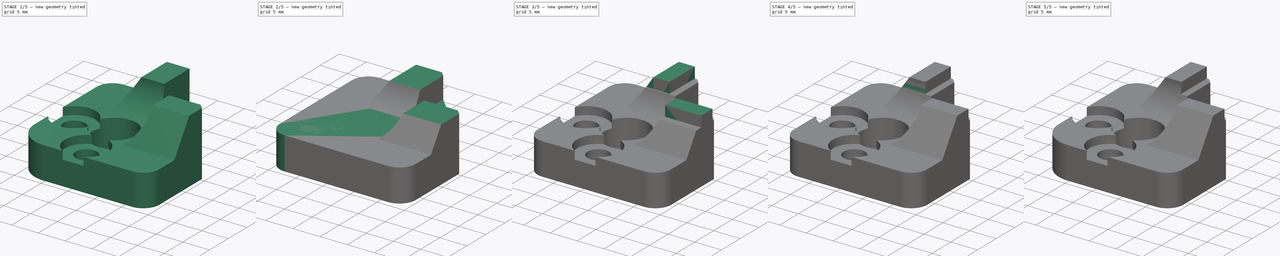
[diagram: build sequence overview — one tinted view per stage of 5, left to right]
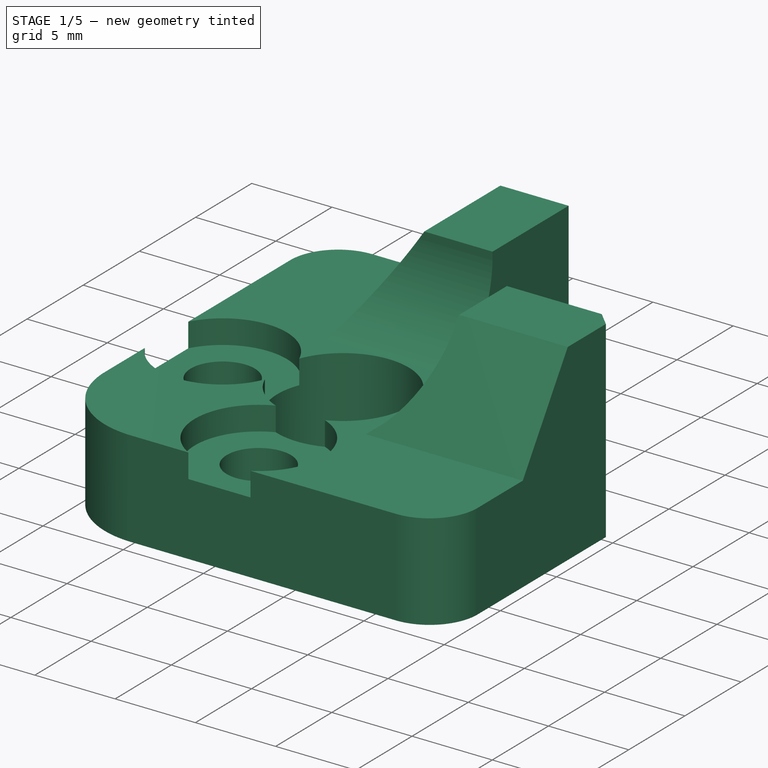
[diagram: stage 1 of 5 — iso view after this stage's code; geometry added in this stage tinted green]
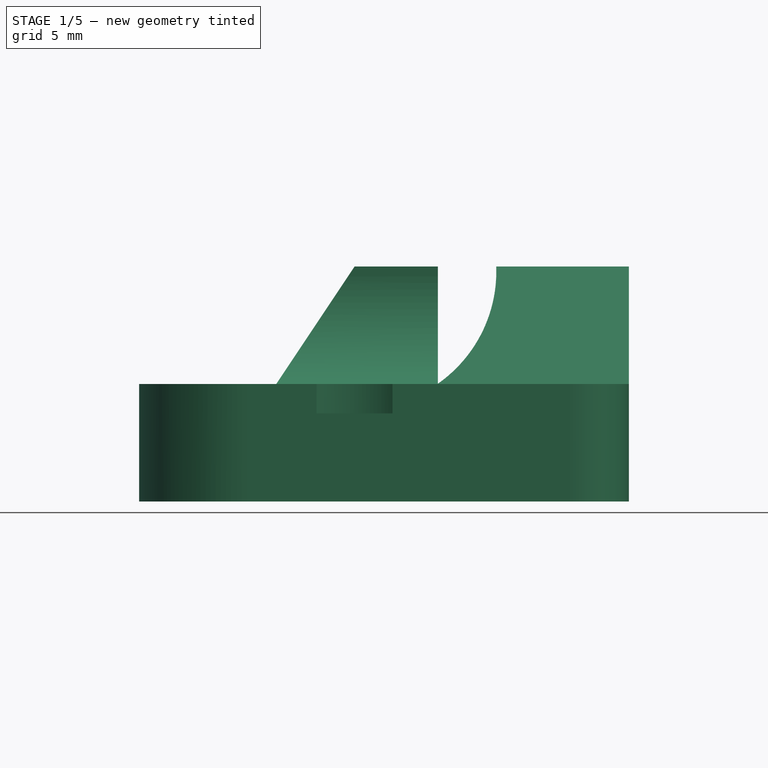
[diagram: stage 1 of 5 — front view after this stage's code; geometry added in this stage tinted green]
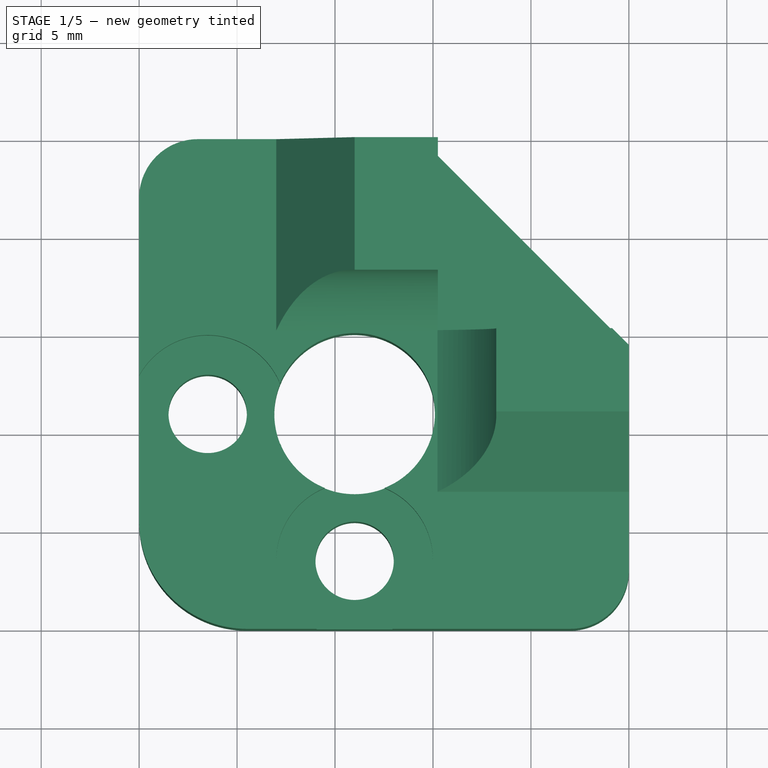
[diagram: stage 1 of 5 — top view after this stage's code; geometry added in this stage tinted green]
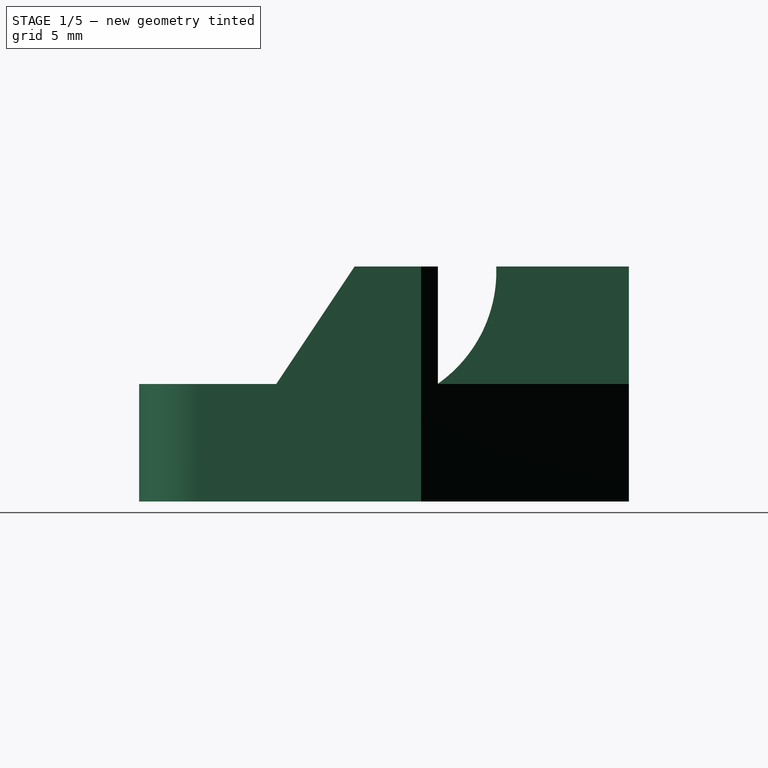
[diagram: stage 1 of 5 — right view after this stage's code; geometry added in this stage tinted green]
FCSTD DOCUMENT  (FreeCAD 0.17R11850 (Git))
Label: bed_corner_mini_2pb_v2
License: All rights reserved
LicenseURL: http://en.wikipedia.org/wiki/All_rights_reserved
objects: Sketcher::SketchObject×10, PartDesign::Pad×8, PartDesign::Pocket×8, PartDesign::Body×2, Part::Feature×2
note: 46 computed .brp shape members not serialized (recipe doc carries the construction recipe); baked Part::Feature solids carry a one-line shape summary decoded from their .brp

FEATURE [PartDesign::Body] Body
  Group = -> [Sketch,Pad,Sketch001,Pad001,Sketch002,Pad002,Sketch003,Pocket,Sketch004,Pocket001,Sketch005,Pad003,Sketch006,Pad004,Pocket002,Sketch007,Pad005,Pocket003,Sketch008,Pocket004]
  Origin = -> Origin
  Tip = -> Pocket004
FEATURE [Part::Feature] Pocket004001  label="Pocket005"
  shape: bbox 25 x 25 x 12 mm, 34 faces (baked)
FEATURE [PartDesign::Pad] Pad006
  BaseFeature = -> Pocket004001
  Length = 1.25
  Length2 = 100
  Profile = -> Pocket004001 [Face31]
  Type = 0
FEATURE [PartDesign::Pad] Pad007
  BaseFeature = -> Pad006
  Length = 1.25
  Length2 = 100
  Profile = -> Pad006 [Face15]
  Type = 0
FEATURE [PartDesign::Pocket] Pocket004002
  BaseFeature = -> Pad007
  Length = 5
  Profile = -> Pad007 [Face15]
  Type = 1
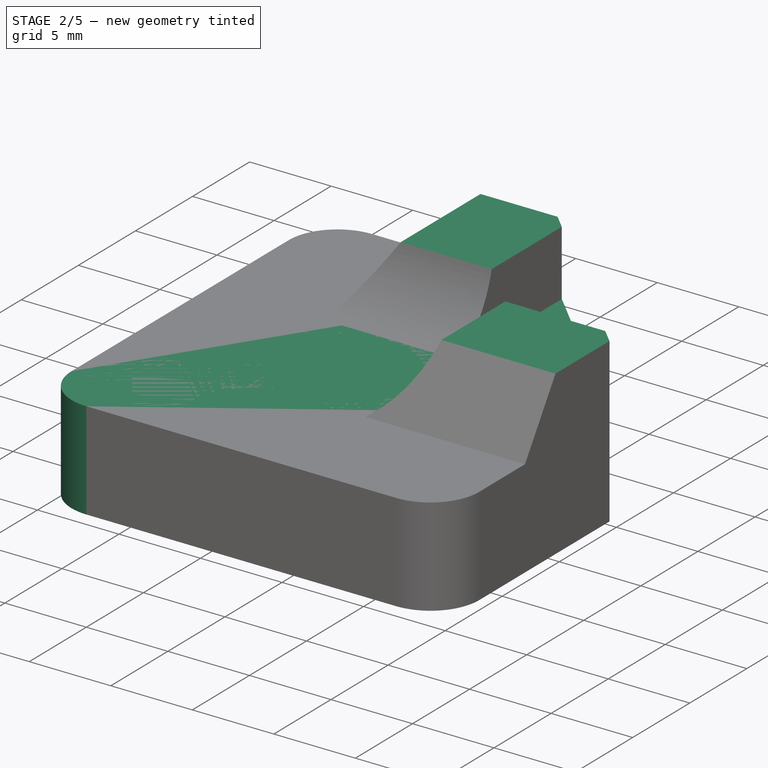
[diagram: stage 2 of 5 — iso view after this stage's code; geometry added in this stage tinted green]
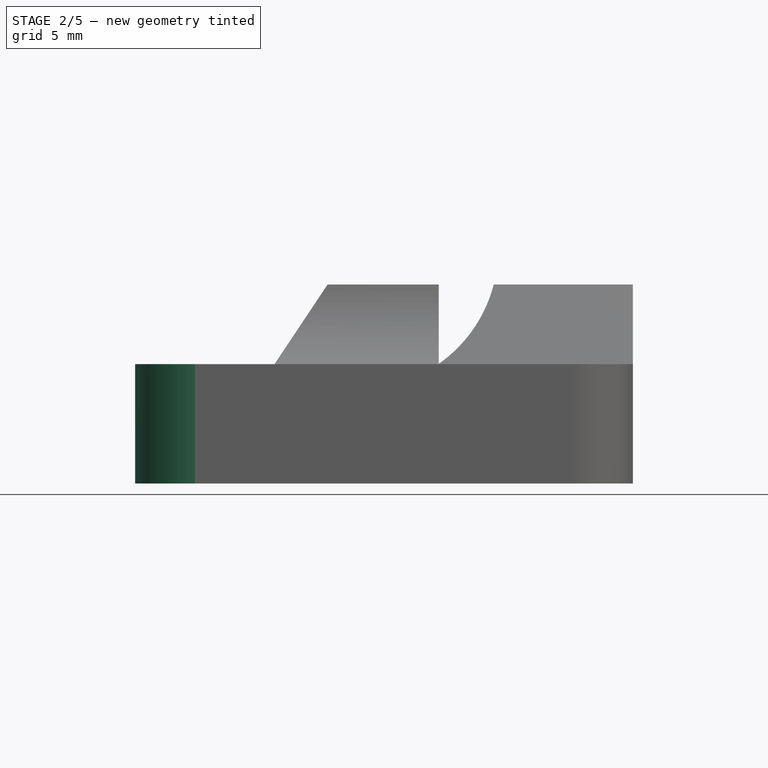
[diagram: stage 2 of 5 — front view after this stage's code; geometry added in this stage tinted green]
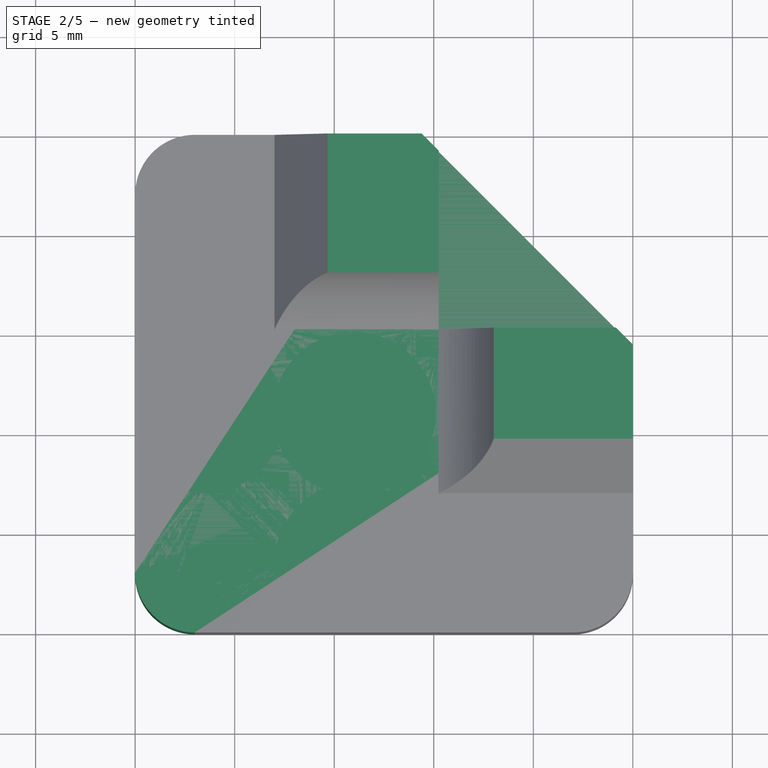
[diagram: stage 2 of 5 — top view after this stage's code; geometry added in this stage tinted green]
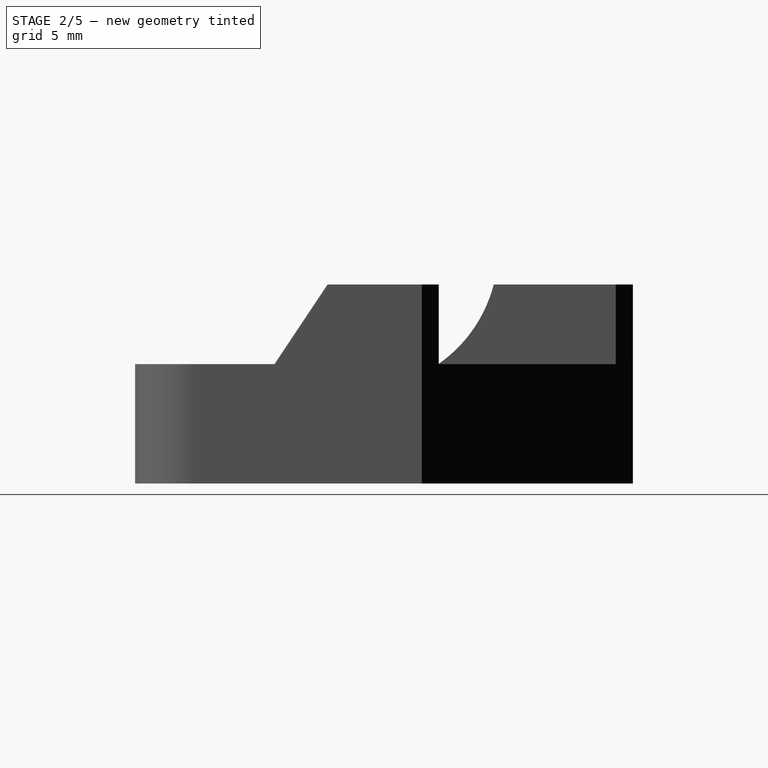
[diagram: stage 2 of 5 — right view after this stage's code; geometry added in this stage tinted green]
FEATURE [Sketcher::SketchObject] Sketch
  MapMode = 5
  Support = -> [XY_Plane]
  sketch-geometry (8):
    g0: LineSegment StartX=3 StartY=0 StartZ=0 EndX=22 EndY=0 EndZ=0
    g1: LineSegment StartX=25 StartY=3 StartZ=0 EndX=25 EndY=14.3934 EndZ=0
    g2: LineSegment StartX=14.3934 StartY=25 StartZ=0 EndX=3 EndY=25 EndZ=0
    g3: LineSegment StartX=0 StartY=22 StartZ=0 EndX=0 EndY=3 EndZ=0
    g4: LineSegment StartX=14.3934 StartY=25 StartZ=0 EndX=25 EndY=14.3934 EndZ=0
    g5: ArcOfCircle CenterX=3 CenterY=22 CenterZ=0 NormalX=0 NormalY=0 NormalZ=1 Radius=3 StartAngle=1.5708 EndAngle=3.14159
    g6: ArcOfCircle CenterX=3 CenterY=3 CenterZ=0 NormalX=0 NormalY=0 NormalZ=1 Radius=3 StartAngle=3.14159 EndAngle=4.71239
    g7: ArcOfCircle CenterX=22 CenterY=3 CenterZ=0 NormalX=0 NormalY=0 NormalZ=1 Radius=3 StartAngle=4.71239 EndAngle=6.28319
  constraints (21):
    c: Horizontal(g0)
    c: Horizontal(g2)
    c: Vertical(g1)
    c: Vertical(g3)
    c: Coincident(g4,g2)
    c: Coincident(g4,g1)
    c: Tangent(g2,g5) = -1.5708
    c: Tangent(g3,g5) = -1.5708
    c: Tangent(g0,g6) = -1.5708
    c: Tangent(g3,g6) = -1.5708
    c: Tangent(g0,g7) = -1.5708
    c: Tangent(g1,g7) = -1.5708
    c: PointOnObject(g3,g-2)
    c: PointOnObject(g0,g-1)
    c: DistanceX(g3,g1) = 25
    c: DistanceY(g0,g2) = 25
    c: Equal(g6,g5)
    c: Equal(g5,g7)
    c: Radius(g7) = 3
    c: Equal(g2,g1)
    c: Distance(g4) = 15
FEATURE [PartDesign::Pad] Pad
  Length = 6
  Length2 = 100
  Profile = -> Sketch
  Type = 0
FEATURE [PartDesign::Pocket] Pocket004003
  BaseFeature = -> Pocket004002
  Length = 5
  Profile = -> Pocket004002 [Face13]
  Type = 1
FEATURE [Sketcher::SketchObject] Sketch009
  MapMode = 5
  Placement = pos=(0,0,12) rot=(0,0,1;0rad)
  Support = -> [Pocket004003]
  sketch-geometry (4):
    g0: LineSegment StartX=-2.62689 StartY=26.62 StartZ=0 EndX=28.9637 EndY=26.62 EndZ=0
    g1: LineSegment StartX=28.9637 StartY=26.62 StartZ=0 EndX=28.9637 EndY=-0.583075 EndZ=0
    g2: LineSegment StartX=28.9637 StartY=-0.583075 StartZ=0 EndX=-2.62689 EndY=-0.583075 EndZ=0
    g3: LineSegment StartX=-2.62689 StartY=-0.583075 StartZ=0 EndX=-2.62689 EndY=26.62 EndZ=0
  constraints (8):
    c: Coincident(g0,g1)
    c: Coincident(g1,g2)
    c: Coincident(g2,g3)
    c: Coincident(g3,g0)
    c: Horizontal(g0)
    c: Horizontal(g2)
    c: Vertical(g1)
    c: Vertical(g3)
FEATURE [PartDesign::Pocket] Pocket004004
  BaseFeature = -> Pocket004003
  Length = 2
  Profile = -> Sketch009
  Type = 0
FEATURE [PartDesign::Body] Body001
  BaseFeature = -> Pocket004001
  Group = -> [Pad006,Pad007,Pocket004002,Pocket004003,Sketch009,Pocket004004]
  Origin = -> Origin001
  Tip = -> Pocket004004
FEATURE [Part::Feature] Pocket004004001  label="Pocket004005"
  shape: bbox 25 x 25 x 10 mm, 29 faces (baked)
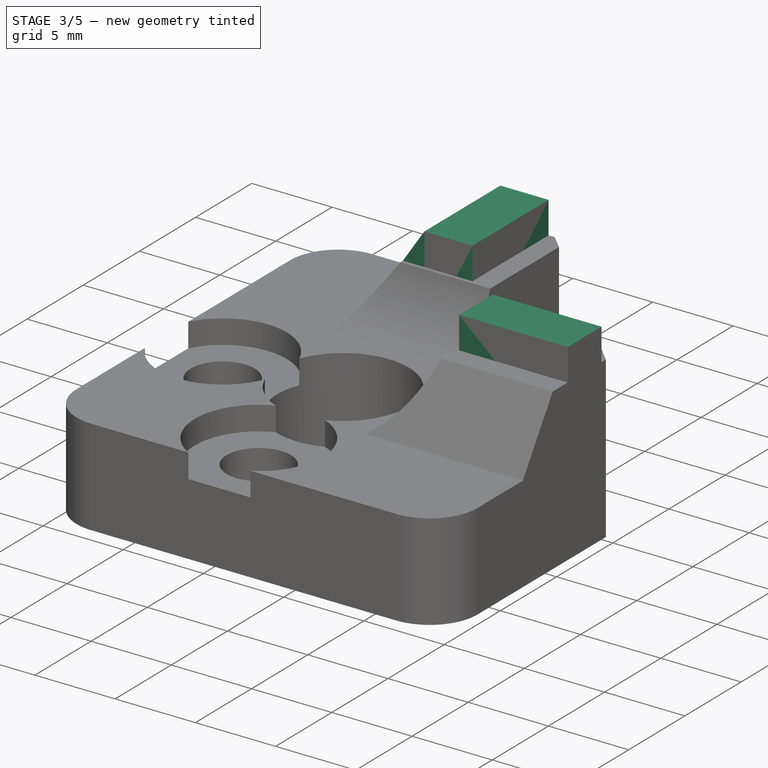
[diagram: stage 3 of 5 — iso view after this stage's code; geometry added in this stage tinted green]
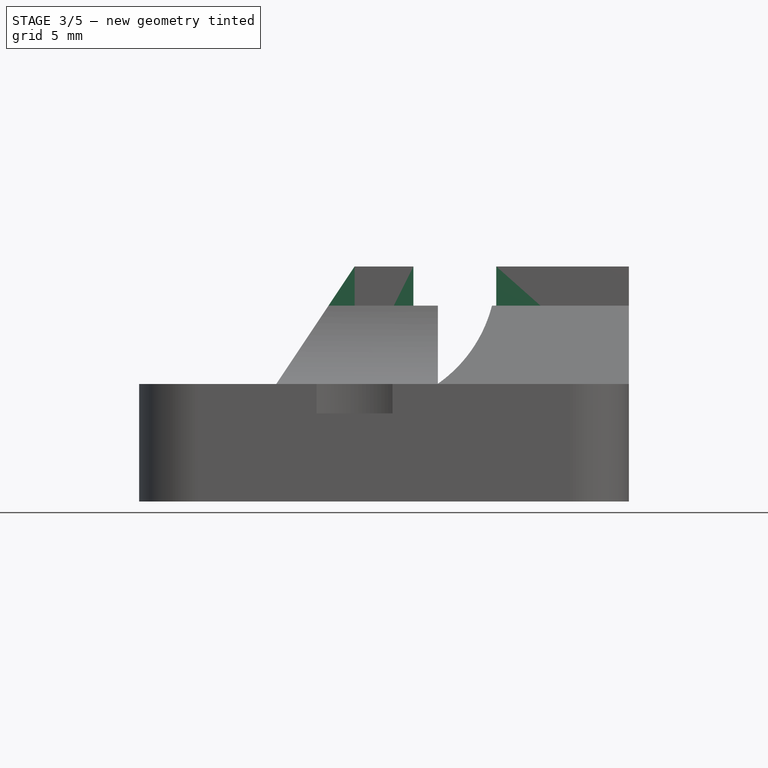
[diagram: stage 3 of 5 — front view after this stage's code; geometry added in this stage tinted green]
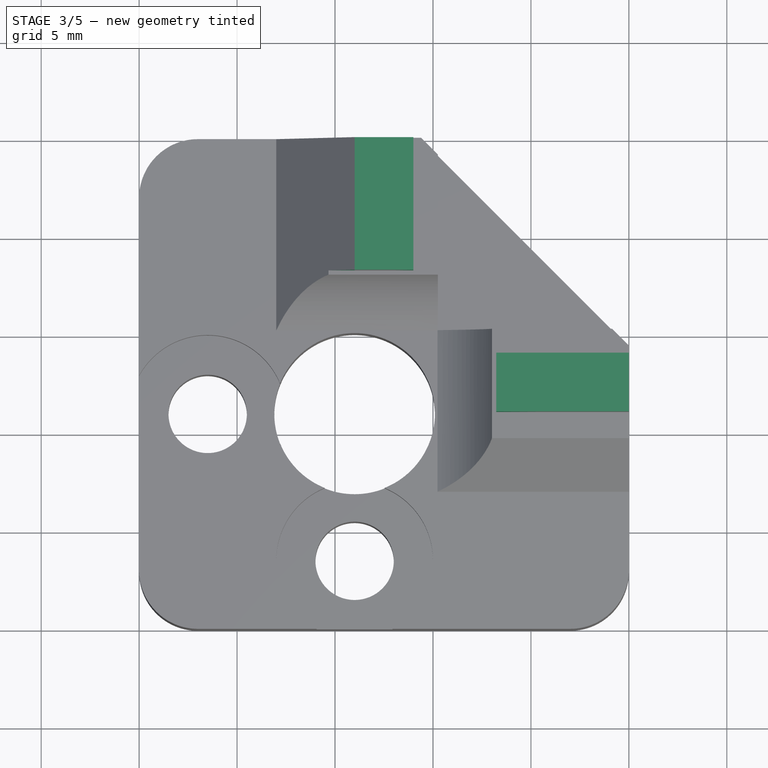
[diagram: stage 3 of 5 — top view after this stage's code; geometry added in this stage tinted green]
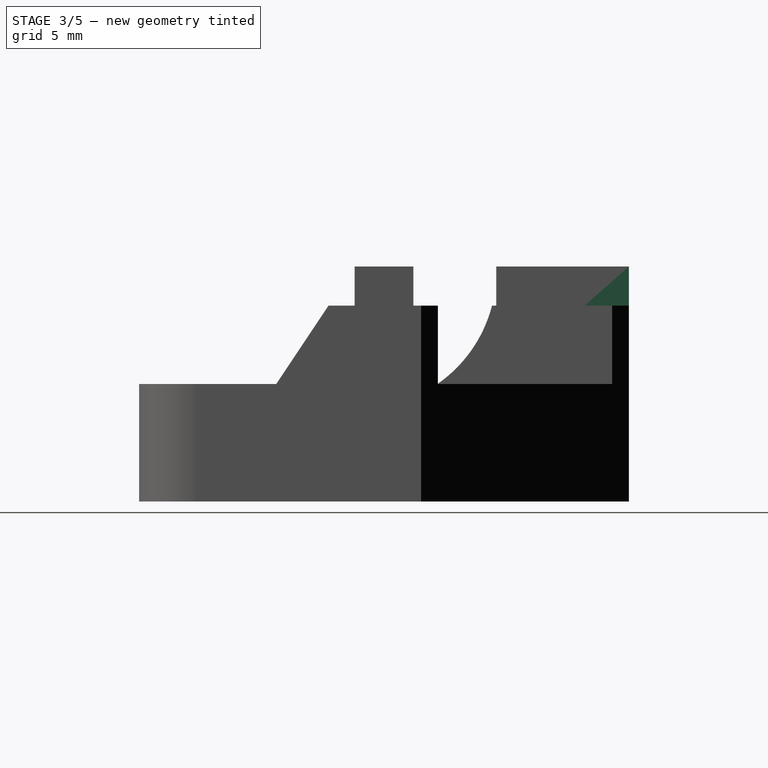
[diagram: stage 3 of 5 — right view after this stage's code; geometry added in this stage tinted green]
FEATURE [Sketcher::SketchObject] Sketch001
  ExternalGeometry = -> [Pad]
  MapMode = 5
  Placement = pos=(0,0,6) rot=(0,0,1;0rad)
  Support = -> [Pad]
  sketch-geometry (9):
    g0: GeomPoint X=25 Y=25 Z=0
    g1: LineSegment StartX=11 StartY=25 StartZ=0 EndX=14 EndY=25 EndZ=0
    g2: LineSegment StartX=14 StartY=25 StartZ=0 EndX=14 EndY=18.2304 EndZ=0
    g3: LineSegment StartX=14 StartY=18.2304 StartZ=0 EndX=11 EndY=18.2304 EndZ=0
    g4: LineSegment StartX=11 StartY=18.2304 StartZ=0 EndX=11 EndY=25 EndZ=0
    g5: LineSegment StartX=25 StartY=14 StartZ=0 EndX=18.2304 EndY=14 EndZ=0
    g6: LineSegment StartX=18.2304 StartY=14 StartZ=0 EndX=18.2304 EndY=11 EndZ=0
    g7: LineSegment StartX=18.2304 StartY=11 StartZ=0 EndX=25 EndY=11 EndZ=0
    g8: LineSegment StartX=25 StartY=11 StartZ=0 EndX=25 EndY=14 EndZ=0
  constraints (25):
    c: DistanceX(g-4,g0) = 0
    c: DistanceY(g-3,g0) = 0
    c: Coincident(g1,g2)
    c: Coincident(g2,g3)
    c: Coincident(g3,g4)
    c: Coincident(g4,g1)
    c: Horizontal(g1)
    c: Horizontal(g3)
    c: Vertical(g2)
    c: Vertical(g4)
    c: PointOnObject(g1,g-3)
    c: Coincident(g5,g6)
    c: Coincident(g6,g7)
    c: Coincident(g7,g8)
    c: Coincident(g8,g5)
    c: Horizontal(g5)
    c: Horizontal(g7)
    c: Vertical(g6)
    c: Vertical(g8)
    c: PointOnObject(g5,g-4)
    c: DistanceY(g5,g0) = 11
    c: DistanceX(g1,g0) = 11
    c: Equal(g6,g3)
    c: DistanceY(g6,g5) = 3
    c: Equal(g5,g2)
FEATURE [PartDesign::Pad] Pad001
  BaseFeature = -> Pad
  Length = 6
  Length2 = 100
  Profile = -> Sketch001
  Type = 0
FEATURE [Sketcher::SketchObject] Sketch002
  ExternalGeometry = -> [Pad001]
  MapMode = 5
  Placement = pos=(0,25,0) rot=(0,0.707107,0.707107;3.14159rad)
  Support = -> [Pad001]
  sketch-geometry (3):
    g0: LineSegment StartX=-11 StartY=12 StartZ=0 EndX=-7 EndY=6 EndZ=0
    g1: LineSegment StartX=-11 StartY=12 StartZ=0 EndX=-11 EndY=6 EndZ=0
    g2: LineSegment StartX=-11 StartY=6 StartZ=0 EndX=-7 EndY=6 EndZ=0
  constraints (8):
    c: Coincident(g0,g-3)
    c: PointOnObject(g0,g-4)
    c: Coincident(g1,g0)
    c: Coincident(g1,g-4)
    c: Coincident(g2,g1)
    c: Coincident(g2,g0)
    c: Distance(g-4) = 8
    c: DistanceX(g0,g-4) = 4
FEATURE [PartDesign::Pad] Pad002
  BaseFeature = -> Pad001
  Length = 6.77
  Length2 = 100
  Profile = -> Sketch002
  Reversed = true
  Type = 0
FEATURE [Sketcher::SketchObject] Sketch003
  MapMode = 5
  Placement = pos=(0,0,6) rot=(0,0,1;0rad)
  Support = -> [Pad002]
  sketch-geometry (3):
    g0: Circle CenterX=11 CenterY=11 CenterZ=0 NormalX=0 NormalY=0 NormalZ=1 Radius=4.1
    g1: Circle CenterX=3.5 CenterY=11 CenterZ=0 NormalX=0 NormalY=0 NormalZ=1 Radius=2
    g2: Circle CenterX=11 CenterY=3.5 CenterZ=0 NormalX=0 NormalY=0 NormalZ=1 Radius=2
  constraints (9):
    c: DistanceX(g-1,g2) = 11
    c: DistanceY(g-1,g1) = 11
    c: DistanceX(g-1,g1) = 3.5
    c: DistanceY(g-1,g2) = 3.5
    c: Equal(g1,g2)
    c: DistanceX(g-1,g0) = 11
    c: DistanceY(g-1,g0) = 11
    c: Radius(g1) = 2
    c: Radius(g0) = 4.1
FEATURE [PartDesign::Pocket] Pocket
  BaseFeature = -> Pad002
  Length = 5
  Profile = -> Sketch003
  Type = 1
FEATURE [Sketcher::SketchObject] Sketch004
  ExternalGeometry = -> [Pocket]
  MapMode = 5
  Placement = pos=(0,0,6) rot=(0,0,1;0rad)
  Support = -> [Pocket]
  sketch-geometry (2):
    g0: Circle CenterX=3.5 CenterY=11 CenterZ=0 NormalX=0 NormalY=0 NormalZ=1 Radius=4
    g1: Circle CenterX=11 CenterY=3.5 CenterZ=0 NormalX=0 NormalY=0 NormalZ=1 Radius=4
  constraints (4):
    c: Coincident(g0,g-3)
    c: Coincident(g1,g-4)
    c: Equal(g0,g1)
    c: Radius(g0) = 4
FEATURE [PartDesign::Pocket] Pocket001
  BaseFeature = -> Pocket
  Length = 1.5
  Profile = -> Sketch004
  Type = 0
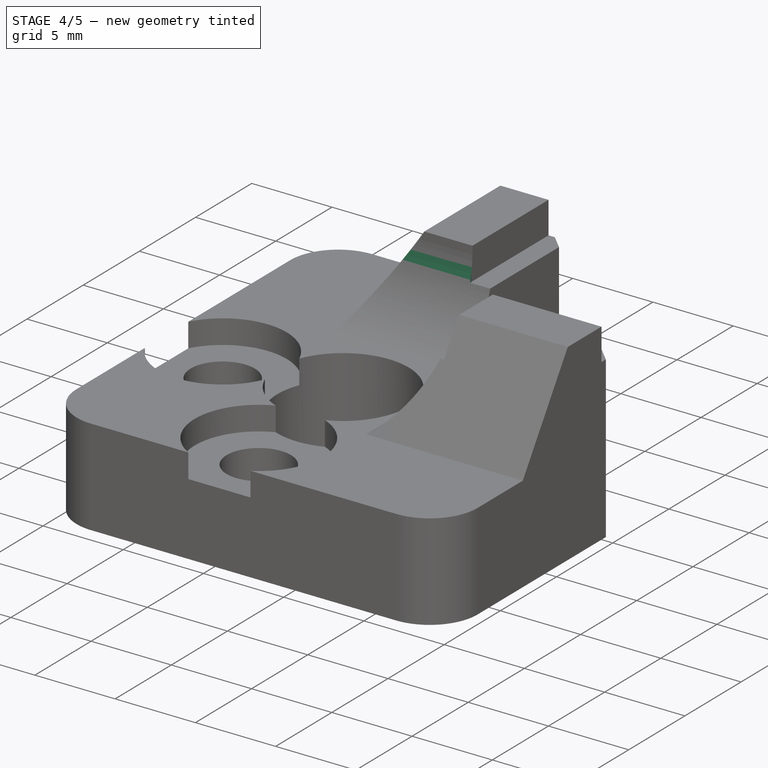
[diagram: stage 4 of 5 — iso view after this stage's code; geometry added in this stage tinted green]
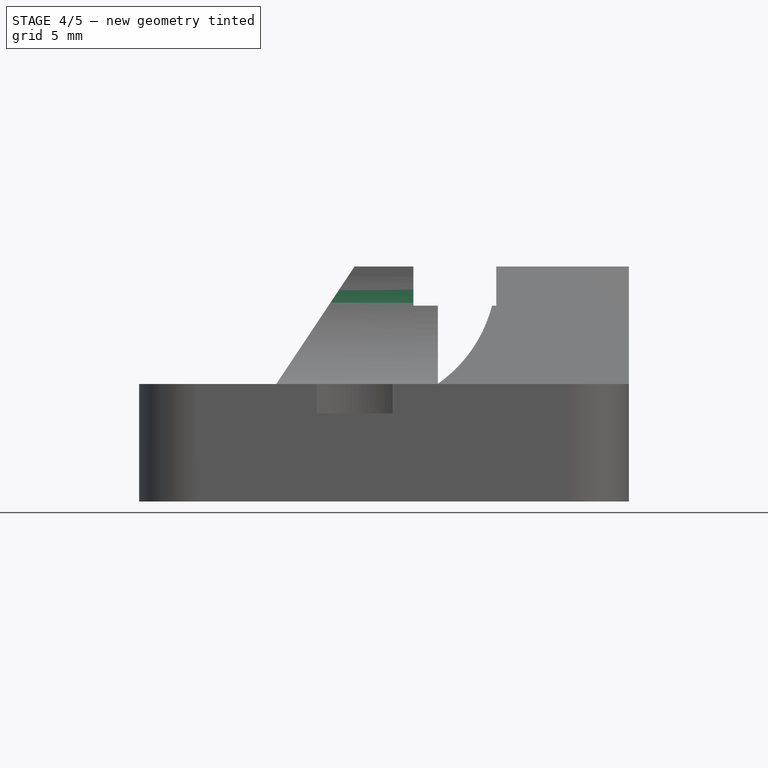
[diagram: stage 4 of 5 — front view after this stage's code; geometry added in this stage tinted green]
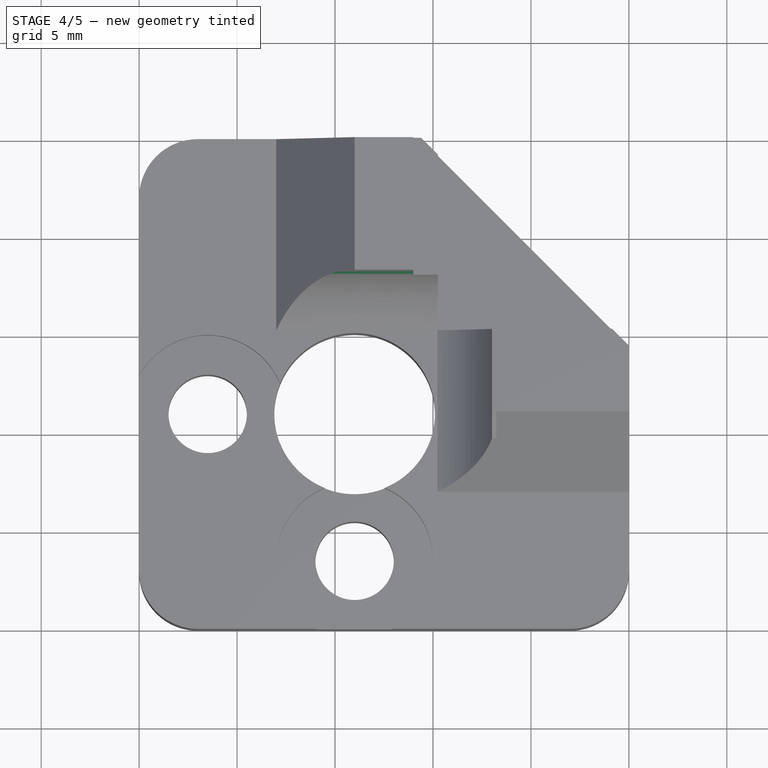
[diagram: stage 4 of 5 — top view after this stage's code; geometry added in this stage tinted green]
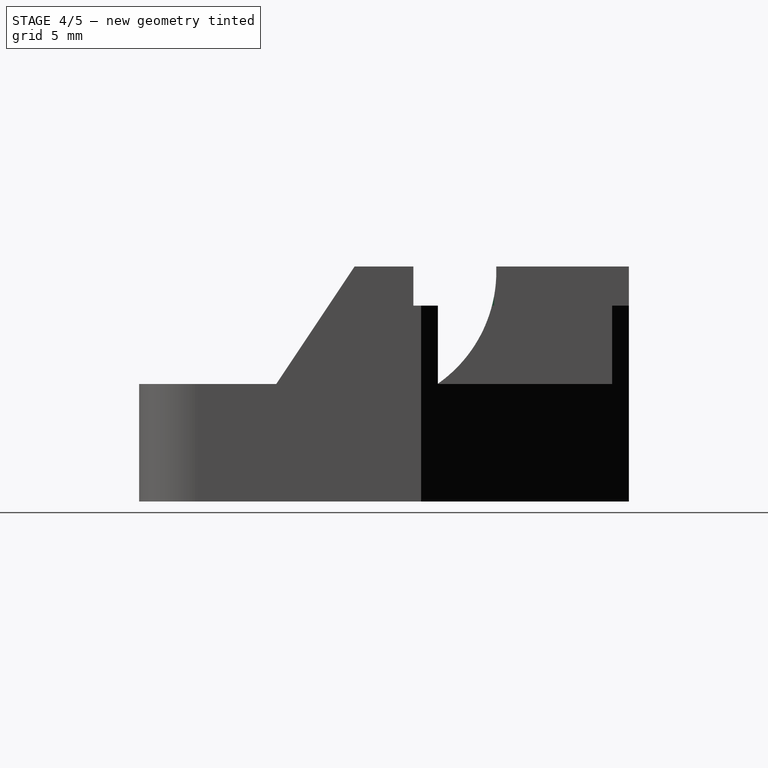
[diagram: stage 4 of 5 — right view after this stage's code; geometry added in this stage tinted green]
FEATURE [Sketcher::SketchObject] Sketch005
  ExternalGeometry = -> [Pocket001]
  MapMode = 5
  Placement = pos=(25,0,0) rot=(0.57735,0.57735,0.57735;2.0944rad)
  Support = -> [Pocket001]
  sketch-geometry (3):
    g0: LineSegment StartX=11 StartY=12 StartZ=0 EndX=7 EndY=6 EndZ=0
    g1: LineSegment StartX=7 StartY=6 StartZ=0 EndX=11 EndY=6 EndZ=0
    g2: LineSegment StartX=11 StartY=6 StartZ=0 EndX=11 EndY=12 EndZ=0
  constraints (7):
    c: Coincident(g-4,g0)
    c: PointOnObject(g0,g-3)
    c: Coincident(g0,g1)
    c: Coincident(g1,g-4)
    c: Coincident(g1,g2)
    c: Coincident(g2,g0)
    c: DistanceX(g-3,g0) = 4
FEATURE [PartDesign::Pad] Pad003
  BaseFeature = -> Pocket001
  Length = 6.77
  Length2 = 100
  Profile = -> Sketch005
  Reversed = true
  Type = 0
FEATURE [Sketcher::SketchObject] Sketch006
  ExternalGeometry = -> [Pad003]
  MapMode = 5
  Placement = pos=(14,0,0) rot=(0.57735,0.57735,0.57735;2.0944rad)
  Support = -> [Pad003]
  sketch-geometry (4):
    g0: GeomPoint X=15.2304 Y=6 Z=0
    g1: ArcOfCircle CenterX=11.2349 CenterY=11.7477 CenterZ=0 NormalX=0 NormalY=0 NormalZ=1 Radius=7 StartAngle=5.31984 EndAngle=6.31923
    g2: LineSegment StartX=15.2304 StartY=6 StartZ=0 EndX=18.2304 EndY=6 EndZ=0
    g3: LineSegment StartX=18.2304 StartY=12 StartZ=0 EndX=18.2304 EndY=6 EndZ=0
  constraints (9):
    c: PointOnObject(g0,g-4)
    c: DistanceX(g0,g-3) = 3
    c: Coincident(g1,g-3)
    c: Coincident(g1,g0)
    c: Coincident(g2,g0)
    c: Coincident(g2,g-3)
    c: Coincident(g3,g1)
    c: Coincident(g3,g2)
    c: Radius(g1) = 7
FEATURE [PartDesign::Pad] Pad004
  BaseFeature = -> Pad003
  Length = 10
  Length2 = 100
  Profile = -> Sketch006
  Reversed = true
  Type = 0
FEATURE [PartDesign::Pocket] Pocket002
  BaseFeature = -> Pad004
  Length = 5
  Profile = -> Pad004 [Face27]
  Type = 1
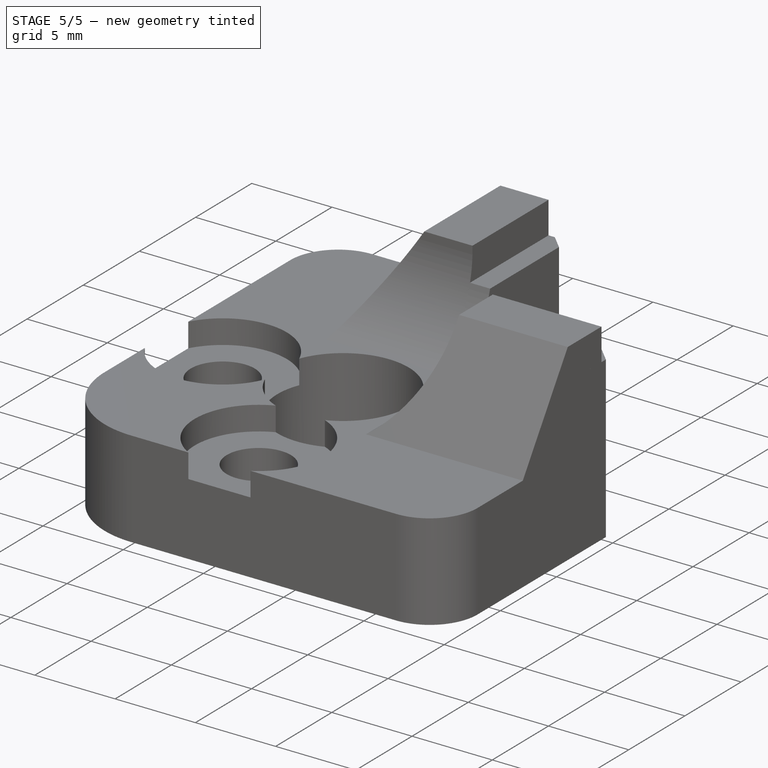
[diagram: stage 5 of 5 — iso view after this stage's code; geometry added in this stage tinted green]
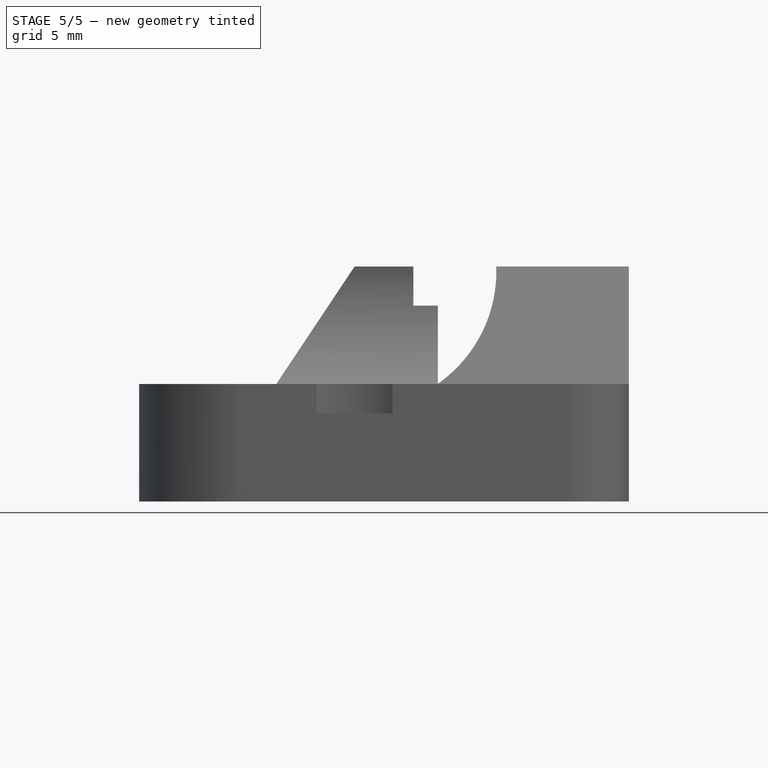
[diagram: stage 5 of 5 — front view after this stage's code; geometry added in this stage tinted green]
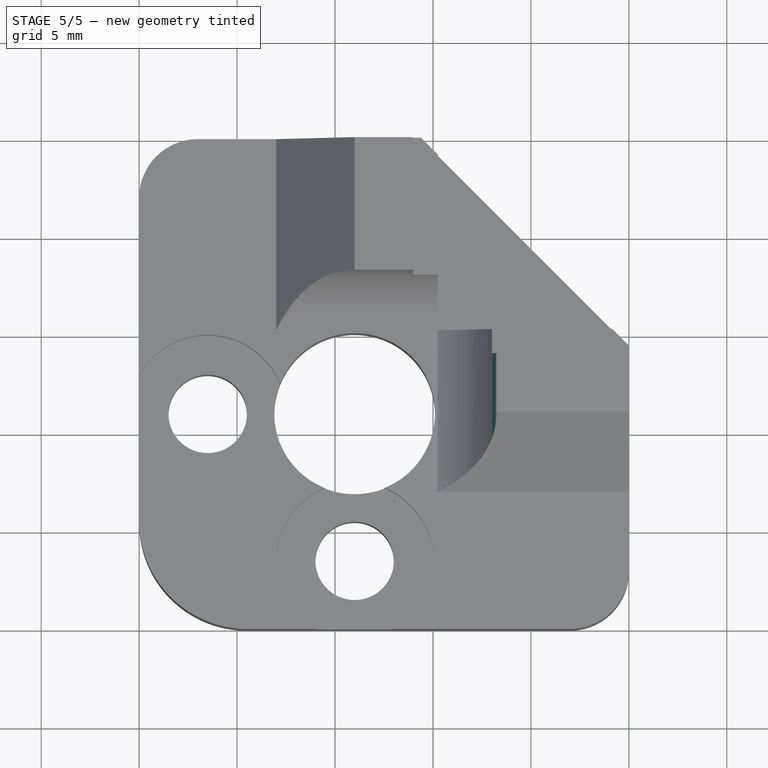
[diagram: stage 5 of 5 — top view after this stage's code; geometry added in this stage tinted green]
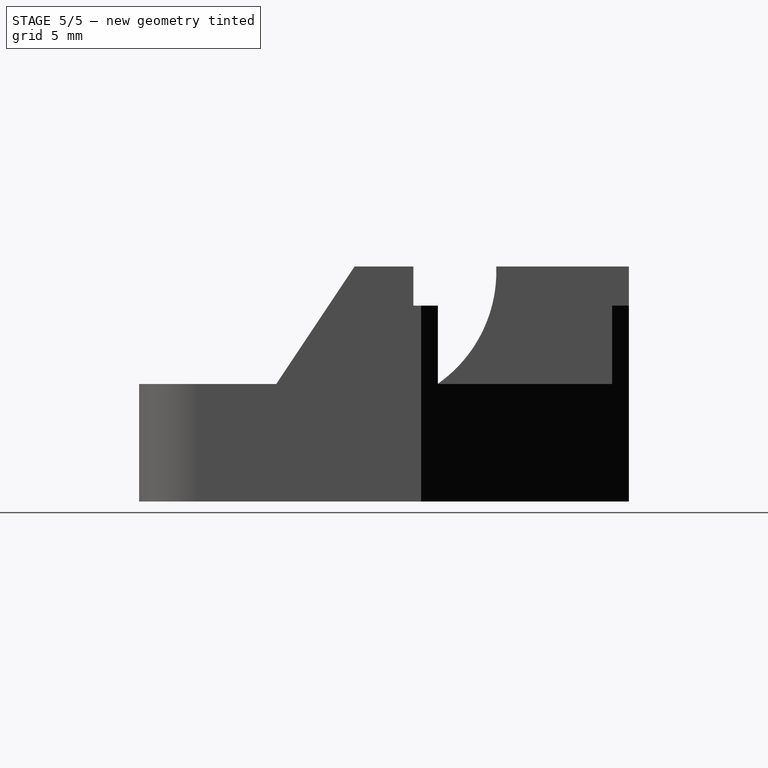
[diagram: stage 5 of 5 — right view after this stage's code; geometry added in this stage tinted green]
FEATURE [Sketcher::SketchObject] Sketch007
  ExternalGeometry = -> [Pocket002]
  MapMode = 5
  Placement = pos=(0,14,0) rot=(0,0.707107,0.707107;3.14159rad)
  Support = -> [Pocket002]
  sketch-geometry (3):
    g0: ArcOfCircle CenterX=-11.2349 CenterY=11.7477 CenterZ=0 NormalX=0 NormalY=0 NormalZ=1 Radius=7 StartAngle=3.10555 EndAngle=4.10493
    g1: LineSegment StartX=-18.2304 StartY=12 StartZ=0 EndX=-18.2304 EndY=6 EndZ=0
    g2: LineSegment StartX=-18.2304 StartY=6 StartZ=0 EndX=-15.2304 EndY=6 EndZ=0
  constraints (9):
    c: Coincident(g0,g-3)
    c: PointOnObject(g0,g-4)
    c: DistanceX(g-3,g0) = 3
    c: Radius(g0) = 7
    c: Coincident(g0,g1)
    c: Coincident(g2,g0)
    c: Horizontal(g2)
    c: Coincident(g1,g-3)
    c: Coincident(g2,g1)
FEATURE [PartDesign::Pad] Pad005
  BaseFeature = -> Pocket002
  Length = 10
  Length2 = 100
  Profile = -> Sketch007
  Reversed = true
  Type = 0
FEATURE [PartDesign::Pocket] Pocket003
  BaseFeature = -> Pad005
  Length = 5
  Profile = -> Pad005 [Face23]
  Type = 1
FEATURE [Sketcher::SketchObject] Sketch008
  ExternalGeometry = -> [Pocket003]
  MapMode = 5
  Placement = pos=(0,0,6) rot=(0,0,1;0rad)
  Support = -> [Pocket003]
  sketch-geometry (5):
    g0: ArcOfCircle CenterX=5.5 CenterY=5.5 CenterZ=0 NormalX=0 NormalY=0 NormalZ=1 Radius=5.5 StartAngle=3.14159 EndAngle=4.71239
    g1: LineSegment StartX=0 StartY=5.5 StartZ=0 EndX=-1.80361 EndY=5.5 EndZ=0
    g2: LineSegment StartX=-1.80361 StartY=5.5 StartZ=0 EndX=-1.80361 EndY=-1.61713 EndZ=0
    g3: LineSegment StartX=-1.80361 StartY=-1.61713 StartZ=0 EndX=5.5 EndY=-1.61713 EndZ=0
    g4: LineSegment StartX=5.5 StartY=-1.61713 StartZ=0 EndX=5.5 EndY=0 EndZ=0
  constraints (14):
    c: PointOnObject(g0,g-4)
    c: PointOnObject(g0,g-5)
    c: Radius(g0) = 5.5
    c: DistanceY(g-4,g0) = 1.5
    c: DistanceX(g-5,g0) = 1.5
    c: Coincident(g1,g0)
    c: Horizontal(g1)
    c: Coincident(g2,g1)
    c: Vertical(g2)
    c: Coincident(g3,g2)
    c: Horizontal(g3)
    c: Coincident(g4,g3)
    c: Coincident(g4,g0)
    c: Vertical(g4)
FEATURE [PartDesign::Pocket] Pocket004
  BaseFeature = -> Pocket003
  Length = 5
  Profile = -> Sketch008
  Type = 1
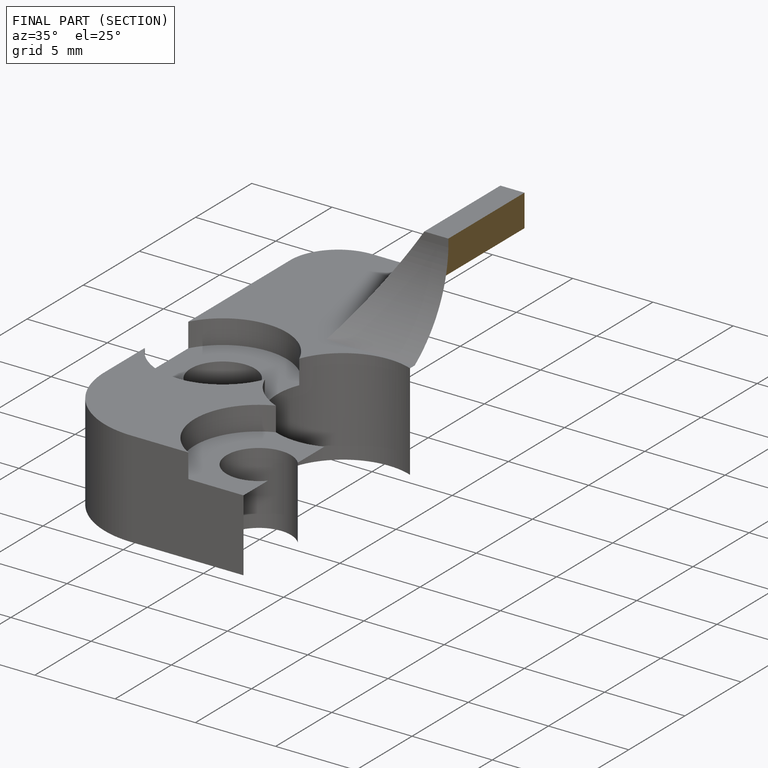
[diagram: finished part — half-section view (interior)]
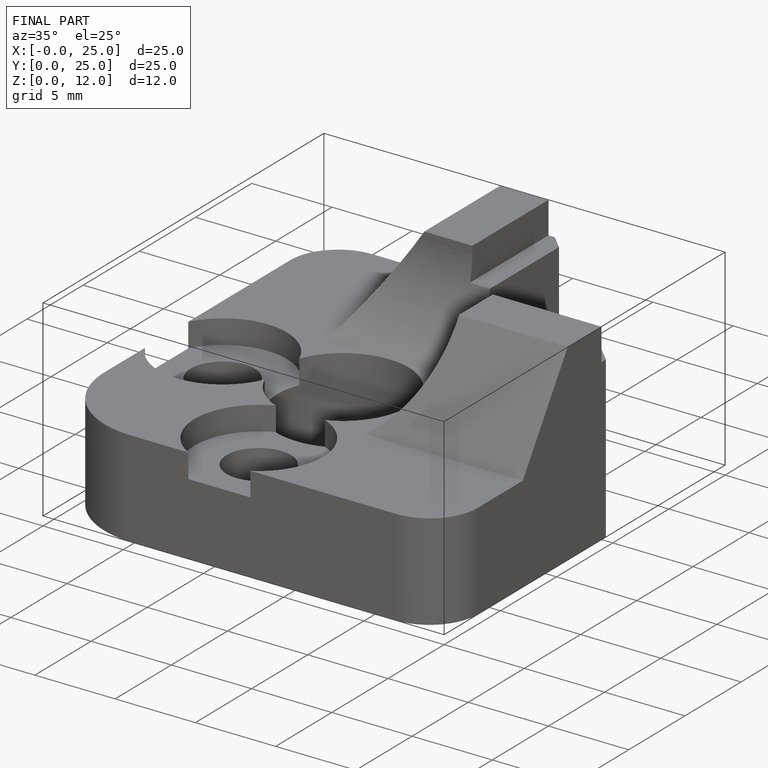
[diagram: finished part — iso view with bounding-box wireframe]
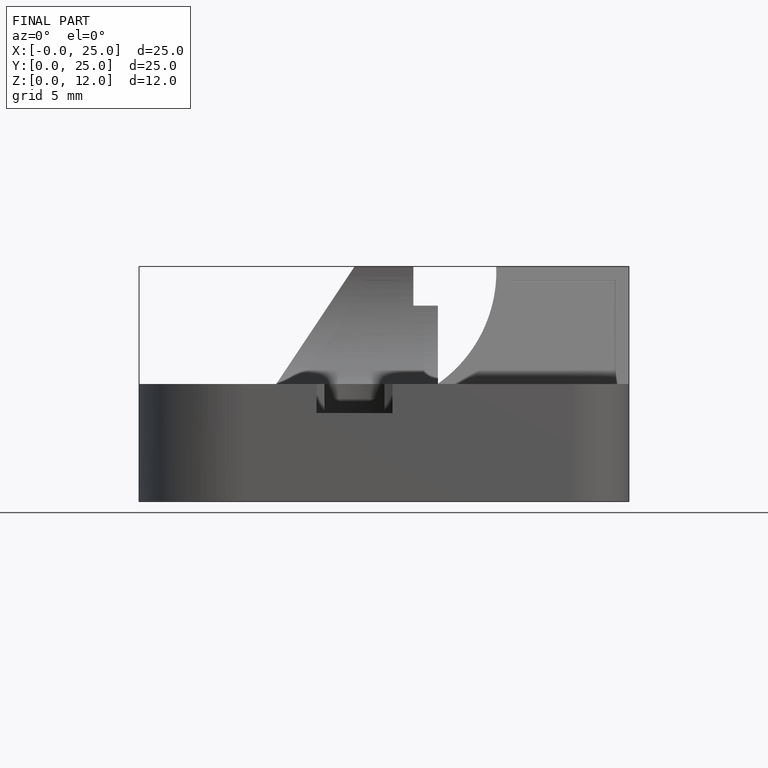
[diagram: finished part — front view with bounding-box wireframe]
